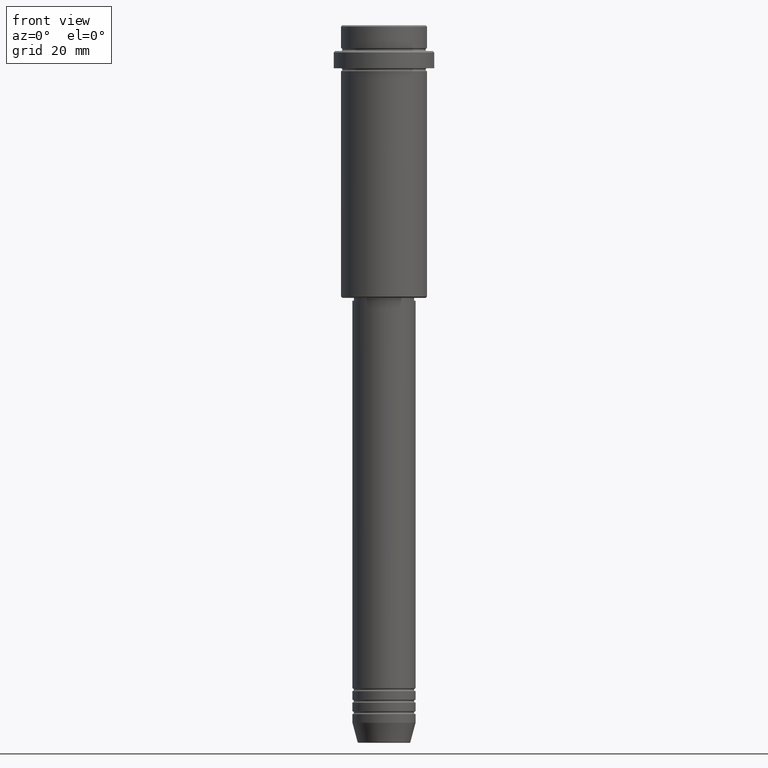
[diagram: clean part render]
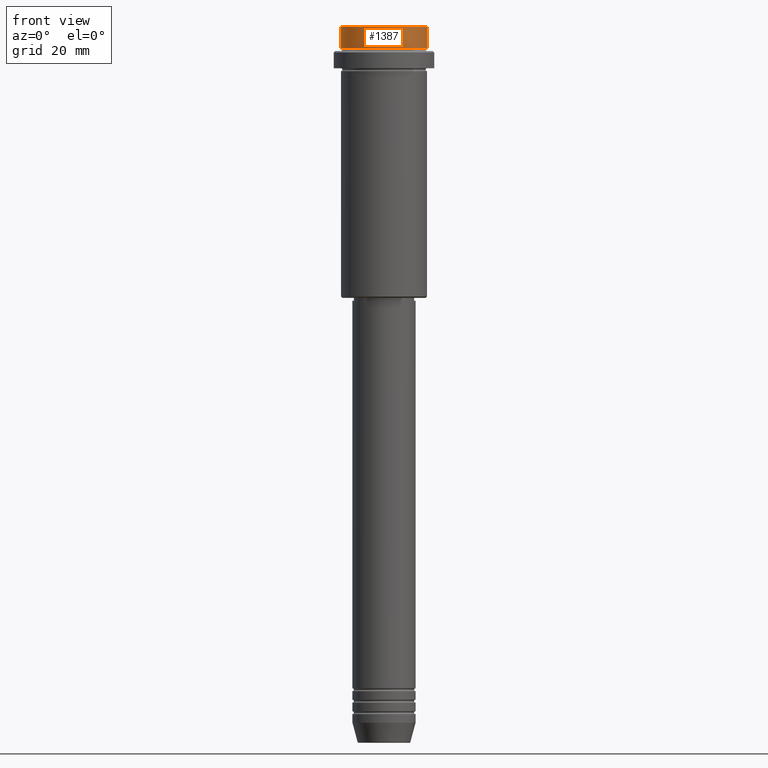
[diagram: same view with one face highlighted and labeled with its STEP entity id]
A machine part, front view. The second image highlights one B-rep face of the part: STEP entity #1387.
In plain terms, the highlighted cylindrical surface (partial cylindrical patch) has radius 15 mm, axis along (-0, -0, 1).
Its self-contained STEP definition (entity closure, byte-faithful):
#9 = VERTEX_POINT ( 'NONE', #1252 ) ;
#57 = DIRECTION ( 'NONE',  ( 1.000000000000000000, 0.000000000000000000, 0.000000000000000000 ) ) ;
#67 = CARTESIAN_POINT ( 'NONE',  ( 0.000000000000000000, 0.000000000000000000, -0.5000000000000108802 ) ) ;
#82 = CARTESIAN_POINT ( 'NONE',  ( -15.00000000000000000, 1.836970198721029589E-15, 0.000000000000000000 ) ) ;
#100 = CARTESIAN_POINT ( 'NONE',  ( 0.000000000000000000, 0.000000000000000000, 0.000000000000000000 ) ) ;
#112 = FACE_OUTER_BOUND ( 'NONE', #1025, .T. ) ;
#160 = CIRCLE ( 'NONE', #1096, 15.00000000000000000 ) ;
#236 = ORIENTED_EDGE ( 'NONE', *, *, #241, .T. ) ;
#241 = EDGE_CURVE ( 'NONE', #788, #702, #1085, .T. ) ;
#254 = CARTESIAN_POINT ( 'NONE',  ( 15.00000000000000000, 0.000000000000000000, 0.000000000000000000 ) ) ;
#311 = DIRECTION ( 'NONE',  ( 1.000000000000000000, 0.000000000000000000, 0.000000000000000000 ) ) ;
#417 = EDGE_CURVE ( 'NONE', #9, #788, #1307, .T. ) ;
#461 = DIRECTION ( 'NONE',  ( -0.000000000000000000, -0.000000000000000000, 1.000000000000000000 ) ) ;
#498 = EDGE_CURVE ( 'NONE', #702, #1246, #160, .T. ) ;
#559 = CYLINDRICAL_SURFACE ( 'NONE', #1035, 15.00000000000000000 ) ;
#622 = EDGE_CURVE ( 'NONE', #9, #1246, #1327, .T. ) ;
#675 = ORIENTED_EDGE ( 'NONE', *, *, #622, .F. ) ;
#698 = CARTESIAN_POINT ( 'NONE',  ( 15.00000000000000000, 0.000000000000000000, -7.999999999999998224 ) ) ;
#701 = CARTESIAN_POINT ( 'NONE',  ( -15.00000000000000000, 1.836970198721029589E-15, -0.5000000000000108802 ) ) ;
#702 = VERTEX_POINT ( 'NONE', #797 ) ;
#715 = DIRECTION ( 'NONE',  ( -0.000000000000000000, -0.000000000000000000, 1.000000000000000000 ) ) ;
#788 = VERTEX_POINT ( 'NONE', #698 ) ;
#797 = CARTESIAN_POINT ( 'NONE',  ( 15.00000000000000000, 0.000000000000000000, -0.5000000000000108802 ) ) ;
#831 = ORIENTED_EDGE ( 'NONE', *, *, #417, .T. ) ;
#843 = VECTOR ( 'NONE', #1107, 1000.000000000000000 ) ;
#910 = ORIENTED_EDGE ( 'NONE', *, *, #498, .T. ) ;
#940 = DIRECTION ( 'NONE',  ( 0.000000000000000000, 0.000000000000000000, -1.000000000000000000 ) ) ;
#1025 = EDGE_LOOP ( 'NONE', ( #675, #831, #236, #910 ) ) ;
#1035 = AXIS2_PLACEMENT_3D ( 'NONE', #100, #1312, #311 ) ;
#1085 = LINE ( 'NONE', #254, #1382 ) ;
#1096 = AXIS2_PLACEMENT_3D ( 'NONE', #67, #940, #57 ) ;
#1107 = DIRECTION ( 'NONE',  ( -0.000000000000000000, -0.000000000000000000, 1.000000000000000000 ) ) ;
#1246 = VERTEX_POINT ( 'NONE', #701 ) ;
#1252 = CARTESIAN_POINT ( 'NONE',  ( -15.00000000000000000, 1.836970198721029589E-15, -7.999999999999998224 ) ) ;
#1256 = CARTESIAN_POINT ( 'NONE',  ( 0.000000000000000000, 0.000000000000000000, -7.999999999999998224 ) ) ;
#1257 = AXIS2_PLACEMENT_3D ( 'NONE', #1256, #715, #1362 ) ;
#1307 = CIRCLE ( 'NONE', #1257, 15.00000000000000000 ) ;
#1312 = DIRECTION ( 'NONE',  ( -0.000000000000000000, -0.000000000000000000, 1.000000000000000000 ) ) ;
#1327 = LINE ( 'NONE', #82, #843 ) ;
#1362 = DIRECTION ( 'NONE',  ( 1.000000000000000000, 0.000000000000000000, 0.000000000000000000 ) ) ;
#1382 = VECTOR ( 'NONE', #461, 1000.000000000000000 ) ;
#1387 = ADVANCED_FACE ( 'NONE', ( #112 ), #559, .T. ) ;